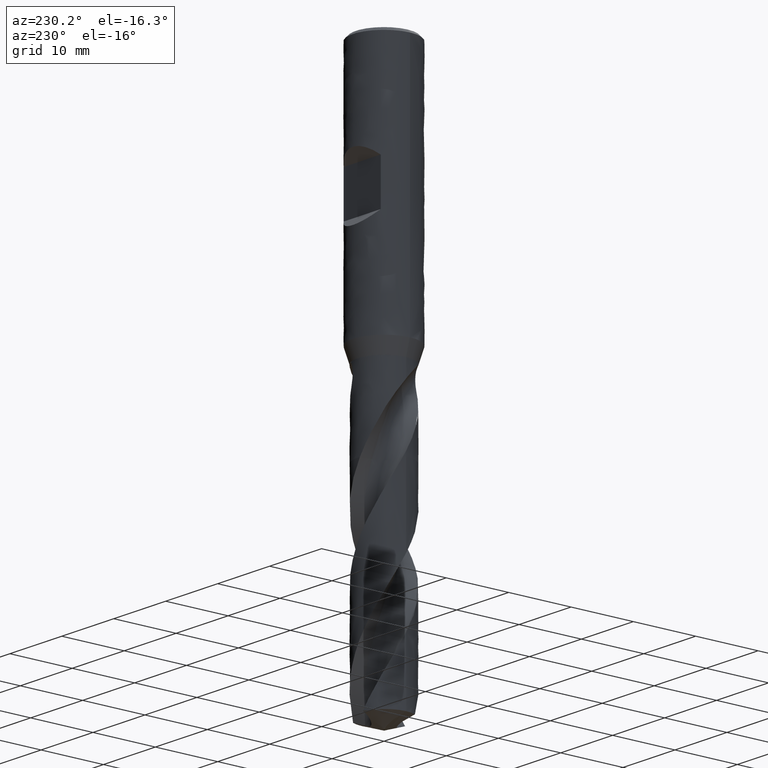
[diagram: clean part render]
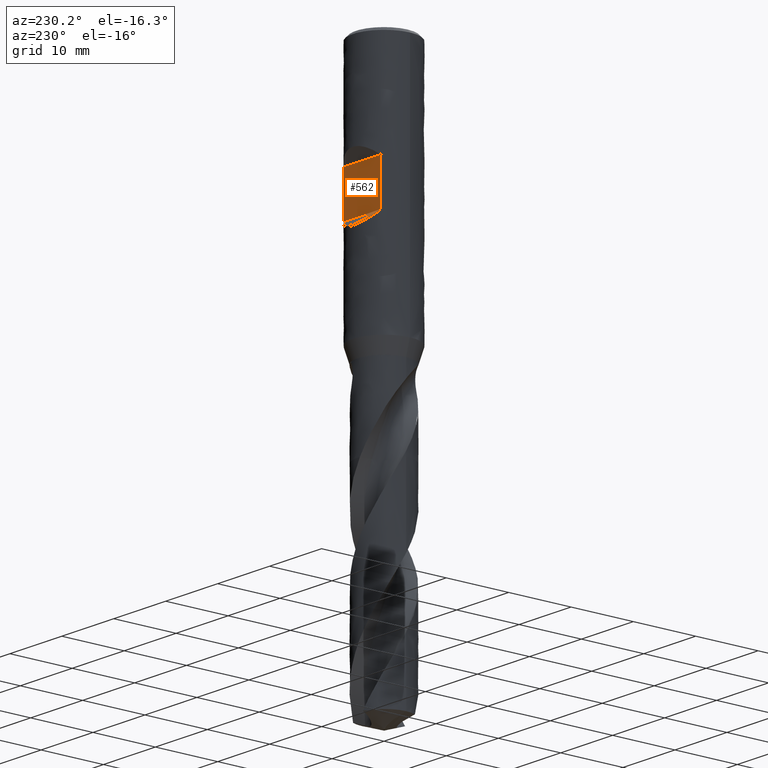
[diagram: same view with one face highlighted and labeled with its STEP entity id]
A machine part, auxiliary view. The second image highlights one B-rep face of the part: STEP entity #562.
In plain terms, the highlighted planar face has unit normal (0, 1, 0).
Its self-contained STEP definition (entity closure, byte-faithful):
#360 = EDGE_CURVE('', #361, #363, #365, .T.);
#361 = VERTEX_POINT('', #362);
#362 = CARTESIAN_POINT('', (3.57071421427142, 3.5, -16.5));
#363 = VERTEX_POINT('', #364);
#364 = CARTESIAN_POINT('', (3.57071421427142, 3.5, -23.5));
#365 = LINE('', #366, #367);
#366 = CARTESIAN_POINT('', (3.57071421427142, 3.5, -16.5));
#367 = VECTOR('', #368, 7.);
#368 = DIRECTION('', (0., 4.44089209850063E-16, -7.));
#371 = VERTEX_POINT('', #372);
#372 = CARTESIAN_POINT('', (-3.57071421427142, 3.5, -16.5));
#457 = EDGE_CURVE('', #371, #458, #460, .T.);
#458 = VERTEX_POINT('', #459);
#459 = CARTESIAN_POINT('', (-3.57071421427143, 3.5, -23.5));
#460 = LINE('', #461, #462);
#461 = CARTESIAN_POINT('', (-3.57071421427142, 3.5, -16.5));
#462 = VECTOR('', #463, 7.);
#463 = DIRECTION('', (-1.77635683940025E-15, 4.44089209850063E-16, -7.));
#562 = ADVANCED_FACE('', (#563), #579, .T.);
#563 = FACE_OUTER_BOUND('', #564, .T.);
#564 = EDGE_LOOP('', (#565, #566, #572, #573));
#565 = ORIENTED_EDGE('', *, *, #360, .T.);
#566 = ORIENTED_EDGE('', *, *, #567, .T.);
#567 = EDGE_CURVE('', #363, #458, #568, .T.);
#568 = LINE('', #569, #570);
#569 = CARTESIAN_POINT('', (3.57071421427142, 3.5, -23.5));
#570 = VECTOR('', #571, 7.14142842854285);
#571 = DIRECTION('', (-7.14142842854285, 4.44089209850063E-16, 0.));
#572 = ORIENTED_EDGE('', *, *, #457, .F.);
#573 = ORIENTED_EDGE('', *, *, #574, .F.);
#574 = EDGE_CURVE('', #361, #371, #575, .T.);
#575 = LINE('', #576, #577);
#576 = CARTESIAN_POINT('', (3.57071421427142, 3.5, -16.5));
#577 = VECTOR('', #578, 7.14142842854285);
#578 = DIRECTION('', (-7.14142842854285, 4.44089209850063E-16, 0.));
#579 = PLANE('', #580);
#580 = AXIS2_PLACEMENT_3D('', #581, #582, #583);
#581 = CARTESIAN_POINT('', (5., 3.5, -23.5));
#582 = DIRECTION('', (0., 1., 6.34413156928661E-17));
#583 = DIRECTION('', (-1., 0., 0.));